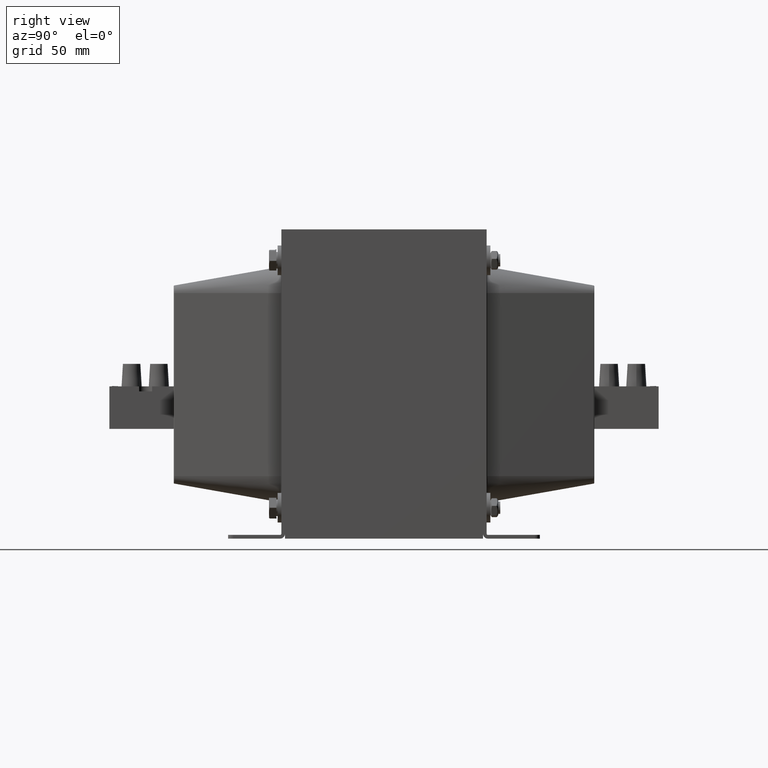
[diagram: clean part render]
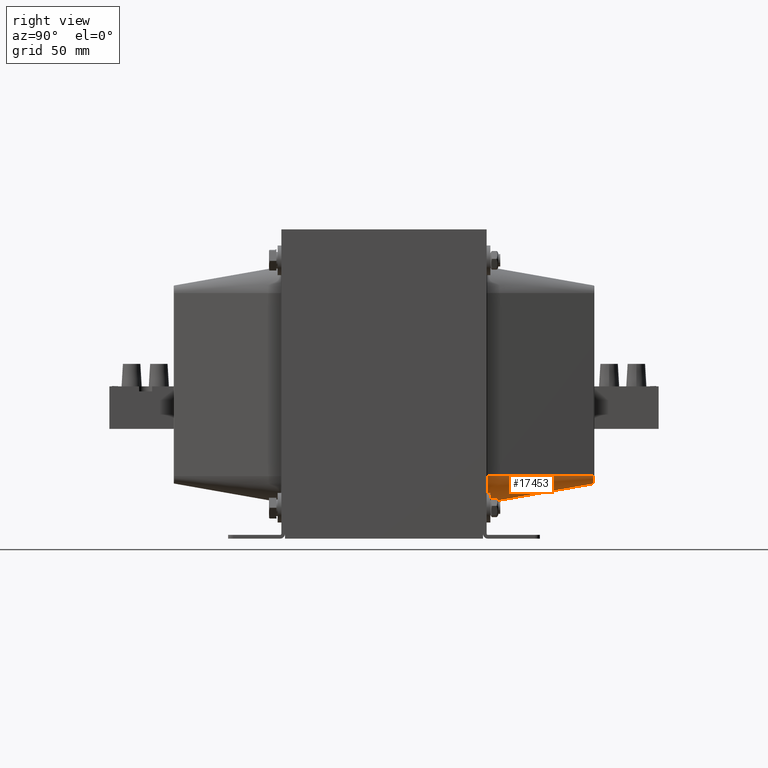
[diagram: same view with one face highlighted and labeled with its STEP entity id]
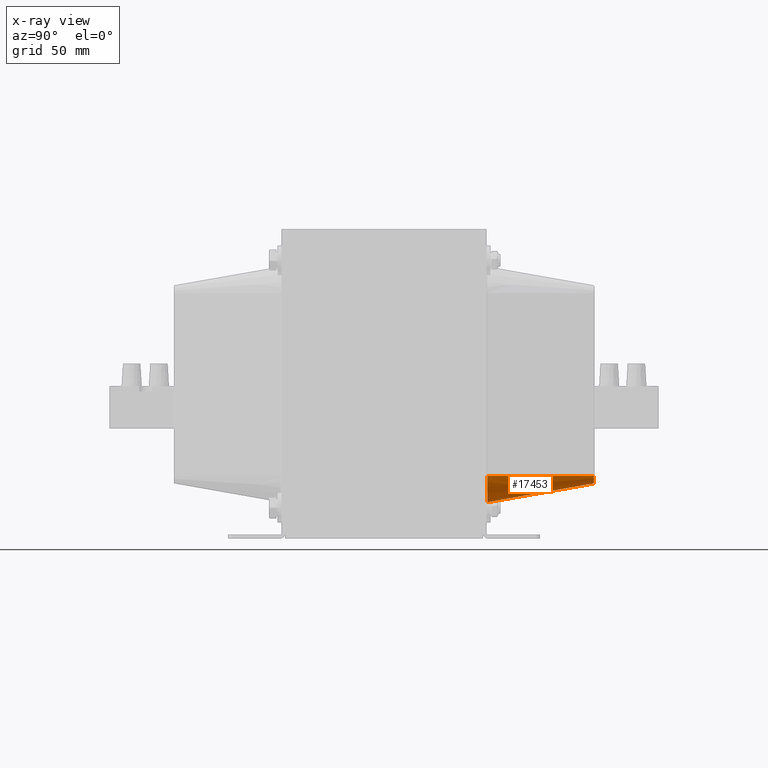
[diagram: x-ray of the same camera — body ghosted, the highlighted face saturated]
A machine part, right view. The second image highlights one B-rep face of the part: STEP entity #17453.
The next image is the same camera in x-ray: the body ghosted, the highlighted face saturated — about 0% of this face is hidden behind the body in this view.
In plain terms, the highlighted conical surface has half-angle 10 deg.
Its self-contained STEP definition (entity closure, byte-faithful):
#614=CONICAL_SURFACE('',#19171,3.04800000000001,0.174532925199433);
#3360=LINE('',#39920,#5166);
#3361=LINE('',#39922,#5167);
#5166=VECTOR('',#23299,10.);
#5167=VECTOR('',#23302,10.);
#6250=FACE_OUTER_BOUND('',#7339,.T.);
#7339=EDGE_LOOP('',(#16312,#16313,#16314,#16315));
#7687=CIRCLE('',#19136,3.10351479441911);
#7700=CIRCLE('',#19161,10.6627088663991);
#9225=VERTEX_POINT('',#39836);
#9229=VERTEX_POINT('',#39848);
#9240=VERTEX_POINT('',#39890);
#9243=VERTEX_POINT('',#39900);
#11581=EDGE_CURVE('',#9229,#9225,#7687,.T.);
#11607=EDGE_CURVE('',#9243,#9240,#7700,.T.);
#11617=EDGE_CURVE('',#9229,#9240,#3360,.T.);
#11618=EDGE_CURVE('',#9225,#9243,#3361,.T.);
#16312=ORIENTED_EDGE('',*,*,#11581,.F.);
#16313=ORIENTED_EDGE('',*,*,#11617,.T.);
#16314=ORIENTED_EDGE('',*,*,#11607,.F.);
#16315=ORIENTED_EDGE('',*,*,#11618,.F.);
#17453=ADVANCED_FACE('',(#6250),#614,.T.);
#19136=AXIS2_PLACEMENT_3D('',#39850,#23211,#23212);
#19161=AXIS2_PLACEMENT_3D('',#39902,#23274,#23275);
#19171=AXIS2_PLACEMENT_3D('',#39921,#23300,#23301);
#23211=DIRECTION('center_axis',(0.,1.,0.));
#23212=DIRECTION('ref_axis',(0.707106781186548,0.,0.707106781186547));
#23274=DIRECTION('center_axis',(0.,-1.,0.));
#23275=DIRECTION('ref_axis',(0.707106781186548,0.,0.707106781186547));
#23299=DIRECTION('',(0.,-0.984807753012208,0.17364817766693));
#23300=DIRECTION('center_axis',(0.,-1.,0.));
#23301=DIRECTION('ref_axis',(0.,1.06710358658949E-32,-1.));
#23302=DIRECTION('',(0.17364817766693,-0.984807753012208,0.));
#39836=CARTESIAN_POINT('',(-22.2311453768144,44.6851599556911,124.31091334525));
#39848=CARTESIAN_POINT('',(-25.3346601712335,44.6851599556911,127.414428139669));
#39850=CARTESIAN_POINT('Origin',(-25.3346601712335,44.6851599556911,124.31091334525));
#39890=CARTESIAN_POINT('',(-25.3346601712335,1.81484004430891,134.973622211649));
#39900=CARTESIAN_POINT('',(-14.6719513048344,1.81484004430891,124.31091334525));
#39902=CARTESIAN_POINT('Origin',(-25.3346601712335,1.81484004430891,124.31091334525));
#39920=CARTESIAN_POINT('',(-25.3346601712335,45.,127.35891334525));
#39921=CARTESIAN_POINT('Origin',(-25.3346601712335,45.,124.31091334525));
#39922=CARTESIAN_POINT('',(-22.2866601712335,45.,124.31091334525));